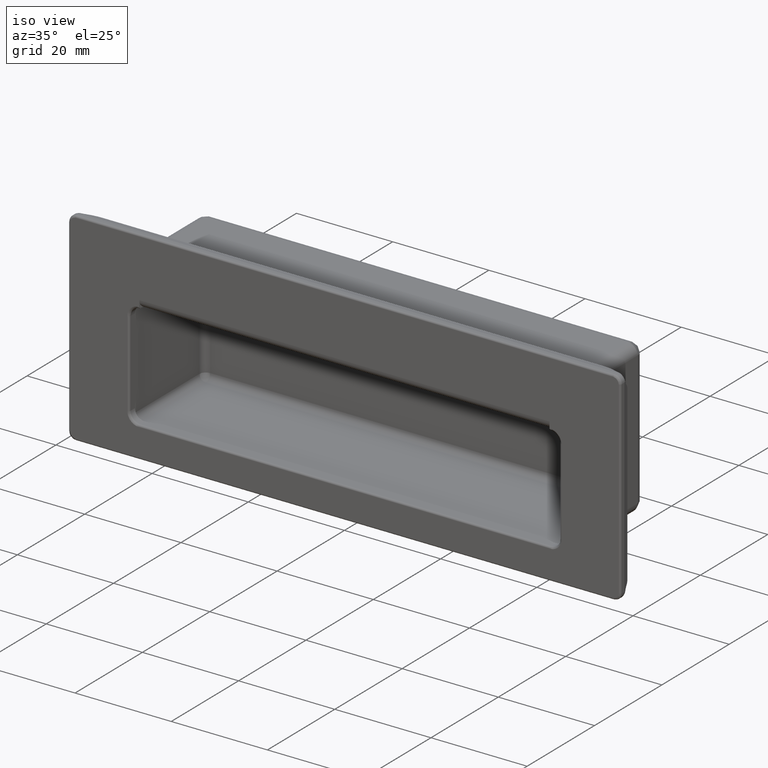
[diagram: clean part render]
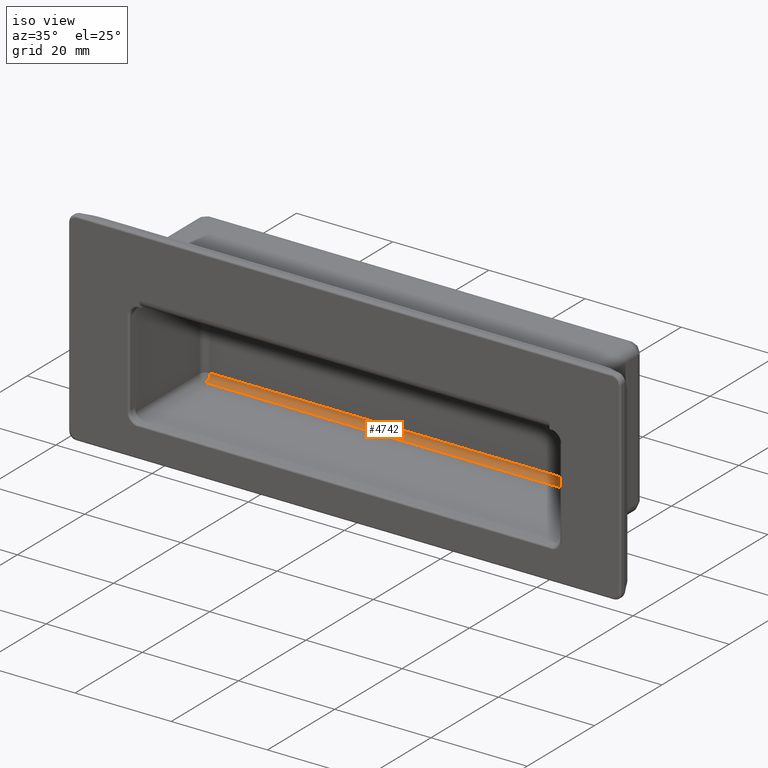
[diagram: same view with one face highlighted and labeled with its STEP entity id]
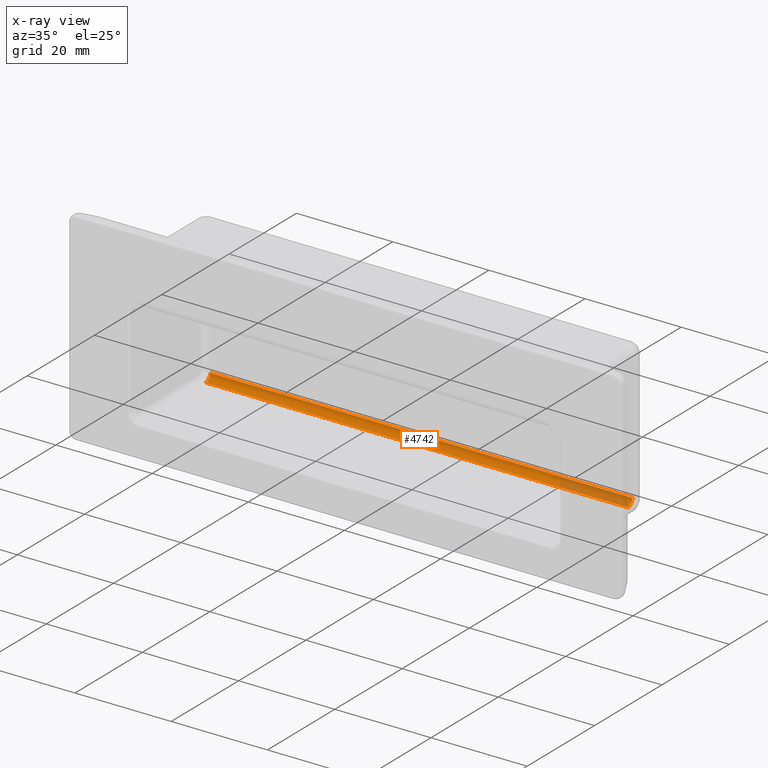
[diagram: x-ray of the same camera — body ghosted, the highlighted face saturated]
A machine part, iso view. The second image highlights one B-rep face of the part: STEP entity #4742.
The next image is the same camera in x-ray: the body ghosted, the highlighted face saturated — about 16% of this face is hidden behind the body in this view.
In plain terms, the highlighted face is a freeform B-spline surface patch.
Its self-contained STEP definition (entity closure, byte-faithful):
#4528=CARTESIAN_POINT('',(-43.899999999999999,22.800000000000001,-13.900000000000199));
#4529=VERTEX_POINT('',#4528);
#4535=CARTESIAN_POINT('',(43.899999999999999,22.800000000000001,-13.900000000000199));
#4536=VERTEX_POINT('',#4535);
#4537=CARTESIAN_POINT('',(-43.899999999999999,22.800000000000001,-13.900000000000199));
#4538=CARTESIAN_POINT('',(43.899999999999999,22.800000000000001,-13.900000000000199));
#4539=QUASI_UNIFORM_CURVE('',1,(#4537,#4538),.UNSPECIFIED.,.F.,.U.);
#4540=EDGE_CURVE('',#4529,#4536,#4539,.T.);
#4573=CARTESIAN_POINT('',(43.899999999999999,21.500000000000000,-15.199999999999999));
#4574=VERTEX_POINT('',#4573);
#4651=CARTESIAN_POINT('',(43.899999999999999,22.800000000000001,-13.900000000000199));
#4652=CARTESIAN_POINT('',(43.900000000000013,22.800137125179251,-14.059558976525519));
#4653=CARTESIAN_POINT('',(43.900000000000020,22.754378902891400,-14.304068489974570));
#4654=CARTESIAN_POINT('',(43.899999999999999,22.595790857638669,-14.619074204723180));
#4655=CARTESIAN_POINT('',(43.900000000000027,22.419051065817460,-14.834433848190390));
#4656=CARTESIAN_POINT('',(43.899999999999928,22.174735744614221,-15.025130989245550));
#4657=CARTESIAN_POINT('',(43.899999999999963,21.872227545783151,-15.163683985583731));
#4658=CARTESIAN_POINT('',(43.900000000000183,21.627631930191100,-15.200057942031240));
#4659=CARTESIAN_POINT('',(43.899999999999999,21.500000000000000,-15.199999999999999));
#4660=B_SPLINE_CURVE_WITH_KNOTS('',3,(#4651,#4652,#4653,#4654,#4655,#4656,#4657,#4658,#4659),.UNSPECIFIED.,.F.,.U.,(4,1,1,1,1,1,4),(0.000000321339255,0.478612584952058,0.733897888050954,1.052903272274322,1.308188900982497,1.659202071422847,2.042086467694622),.UNSPECIFIED.);
#4661=EDGE_CURVE('',#4536,#4574,#4660,.T.);
#4705=CARTESIAN_POINT('',(46.094999999999999,21.465969967199769,-15.199554522468420));
#4706=CARTESIAN_POINT('',(-46.149875000000002,21.465969967199769,-15.199554522468420));
#4707=CARTESIAN_POINT('',(46.095000000000006,22.897480240721137,-15.237039938216338));
#4708=CARTESIAN_POINT('',(-46.149874999999994,22.897480240721137,-15.237039938216338));
#4709=CARTESIAN_POINT('',(46.095000000000013,22.796781823195062,-13.808583901686427));
#4710=CARTESIAN_POINT('',(-46.149874999999994,22.796781823195062,-13.808583901686427));
#4718=(BOUNDED_SURFACE()B_SPLINE_SURFACE(1,2,((#4705,#4707,#4709),(#4706,#4708,#4710)),.UNSPECIFIED.,.F.,.F.,.U.)B_SPLINE_SURFACE_WITH_KNOTS((2,2),(3,3),(0.0,92.244875000000008),(0.0,2.302485047314874),.UNSPECIFIED.)GEOMETRIC_REPRESENTATION_ITEM()RATIONAL_B_SPLINE_SURFACE(((1.0,0.670944223154768,0.996392648609106),(1.0,0.670944223154768,0.996392648609106)))REPRESENTATION_ITEM('')SURFACE());
#4719=CARTESIAN_POINT('',(-43.899999999999999,21.500000000000000,-15.199999999999999));
#4720=VERTEX_POINT('',#4719);
#4721=CARTESIAN_POINT('',(-43.899999999999999,22.800000000000001,-13.900000000000199));
#4722=CARTESIAN_POINT('',(-43.900000000000013,22.800137125179251,-14.059558976525519));
#4723=CARTESIAN_POINT('',(-43.900000000000020,22.754378902891400,-14.304068489974570));
#4724=CARTESIAN_POINT('',(-43.899999999999999,22.595790857638669,-14.619074204723180));
#4725=CARTESIAN_POINT('',(-43.900000000000027,22.419051065817460,-14.834433848190390));
#4726=CARTESIAN_POINT('',(-43.899999999999928,22.174735744614221,-15.025130989245550));
#4727=CARTESIAN_POINT('',(-43.899999999999963,21.872227545783151,-15.163683985583731));
#4728=CARTESIAN_POINT('',(-43.900000000000183,21.627631930191100,-15.200057942031240));
#4729=CARTESIAN_POINT('',(-43.899999999999999,21.500000000000000,-15.199999999999999));
#4730=B_SPLINE_CURVE_WITH_KNOTS('',3,(#4721,#4722,#4723,#4724,#4725,#4726,#4727,#4728,#4729),.UNSPECIFIED.,.F.,.U.,(4,1,1,1,1,1,4),(0.000000321339255,0.478612584952058,0.733897888050954,1.052903272274322,1.308188900982497,1.659202071422847,2.042086467694622),.UNSPECIFIED.);
#4731=EDGE_CURVE('',#4529,#4720,#4730,.T.);
#4732=ORIENTED_EDGE('',*,*,#4731,.T.);
#4733=CARTESIAN_POINT('',(43.899999999999999,21.500000000000000,-15.199999999999999));
#4734=CARTESIAN_POINT('',(-43.899999999999999,21.500000000000000,-15.199999999999999));
#4735=QUASI_UNIFORM_CURVE('',1,(#4733,#4734),.UNSPECIFIED.,.F.,.U.);
#4736=EDGE_CURVE('',#4574,#4720,#4735,.T.);
#4737=ORIENTED_EDGE('',*,*,#4736,.F.);
#4738=ORIENTED_EDGE('',*,*,#4661,.F.);
#4739=ORIENTED_EDGE('',*,*,#4540,.F.);
#4740=EDGE_LOOP('',(#4732,#4737,#4738,#4739));
#4741=FACE_OUTER_BOUND('',#4740,.T.);
#4742=ADVANCED_FACE('',(#4741),#4718,.F.);